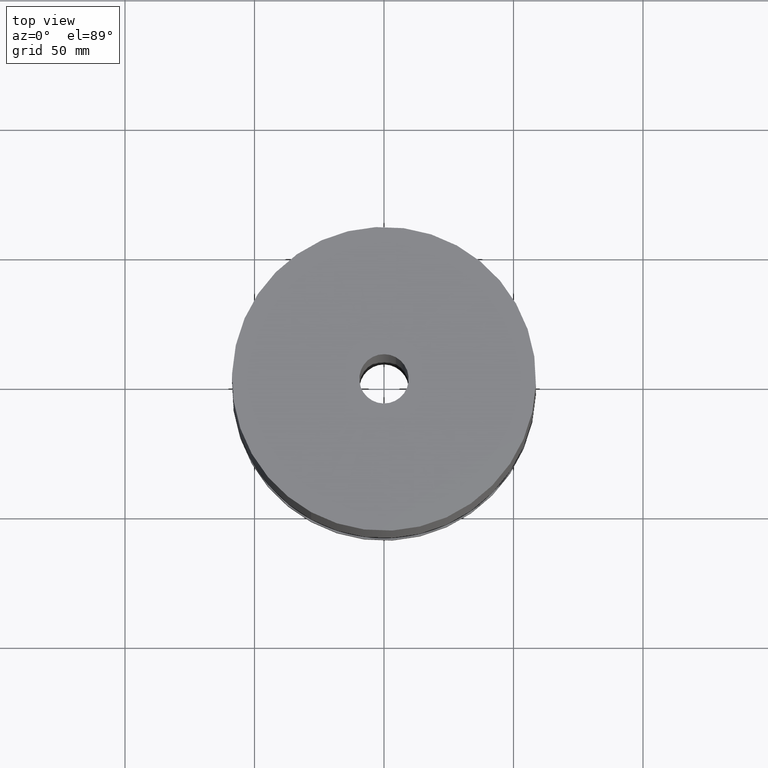
[diagram: clean part render]
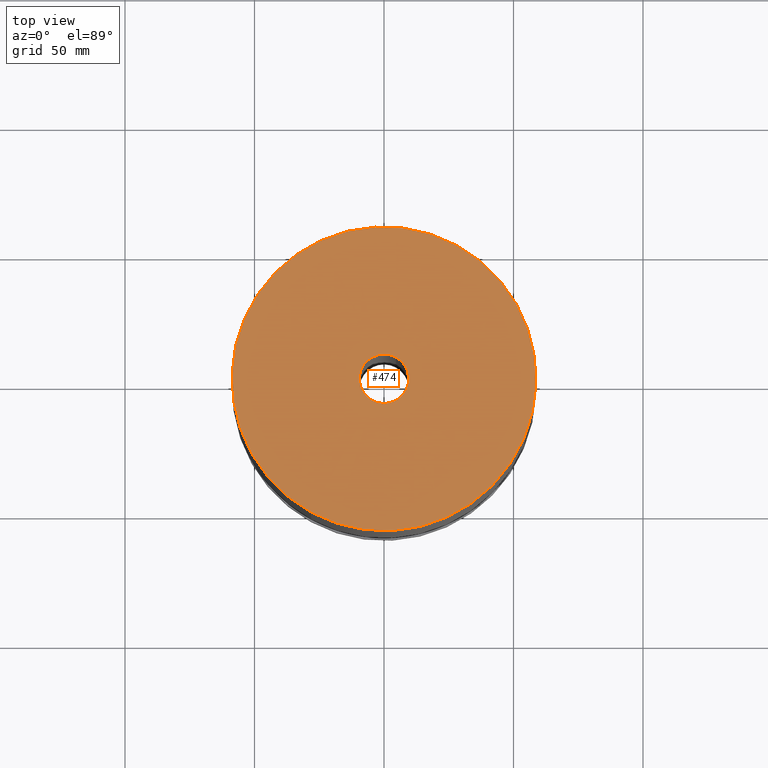
[diagram: same view with one face highlighted and labeled with its STEP entity id]
A machine part, top view. The second image highlights one B-rep face of the part: STEP entity #474.
In plain terms, the highlighted planar face has unit normal (0, 0, -1).
Its self-contained STEP definition (entity closure, byte-faithful):
#418=AXIS2_PLACEMENT_3D('Circle Axis2P3D',#416,#417,$) ;
#437=AXIS2_PLACEMENT_3D('Circle Axis2P3D',#435,#436,$) ;
#450=AXIS2_PLACEMENT_3D('Plane Axis2P3D',#447,#448,#449) ;
#458=AXIS2_PLACEMENT_3D('Circle Axis2P3D',#456,#457,$) ;
#467=AXIS2_PLACEMENT_3D('Circle Axis2P3D',#465,#466,$) ;
#413=CARTESIAN_POINT('Vertex',(1.10747299418,2.02721571797,8.75000000003)) ;
#416=CARTESIAN_POINT('Axis2P3D Location',(0.,0.,8.75000000003)) ;
#420=CARTESIAN_POINT('Vertex',(-1.10747299418,-2.02721571797,8.75000000003)) ;
#435=CARTESIAN_POINT('Axis2P3D Location',(0.,0.,8.75000000003)) ;
#447=CARTESIAN_POINT('Axis2P3D Location',(0.,2.31000000001,8.75000000003)) ;
#456=CARTESIAN_POINT('Axis2P3D Location',(0.,0.,8.75000000003)) ;
#460=CARTESIAN_POINT('Vertex',(-0.179784576977,-0.32909346071,8.75000000004)) ;
#462=CARTESIAN_POINT('Vertex',(0.179784576977,0.32909346071,8.75000000004)) ;
#465=CARTESIAN_POINT('Axis2P3D Location',(0.,0.,8.75000000003)) ;
#417=DIRECTION('Axis2P3D Direction',(0.,0.,-0.0393700787402)) ;
#436=DIRECTION('Axis2P3D Direction',(0.,0.,-0.0393700787402)) ;
#448=DIRECTION('Axis2P3D Direction',(0.,0.,-0.0393700787402)) ;
#449=DIRECTION('Axis2P3D XDirection',(0.0393700787402,0.,0.)) ;
#457=DIRECTION('Axis2P3D Direction',(0.,0.,-0.0393700787402)) ;
#466=DIRECTION('Axis2P3D Direction',(0.,0.,-0.0393700787402)) ;
#453=ORIENTED_EDGE('',*,*,#422,.F.) ;
#454=ORIENTED_EDGE('',*,*,#439,.F.) ;
#471=ORIENTED_EDGE('',*,*,#464,.T.) ;
#472=ORIENTED_EDGE('',*,*,#469,.T.) ;
#473=FACE_BOUND('',#470,.T.) ;
#474=ADVANCED_FACE('PartBody',(#455,#473),#451,.F.) ;
#419=CIRCLE('generated circle',#418,2.31000000001) ;
#438=CIRCLE('generated circle',#437,2.31000000001) ;
#459=CIRCLE('generated circle',#458,0.375000000001) ;
#468=CIRCLE('generated circle',#467,0.375000000001) ;
#422=EDGE_CURVE('',#414,#421,#419,.T.) ;
#439=EDGE_CURVE('',#421,#414,#438,.T.) ;
#464=EDGE_CURVE('',#461,#463,#459,.T.) ;
#469=EDGE_CURVE('',#463,#461,#468,.T.) ;
#452=EDGE_LOOP('',(#453,#454)) ;
#470=EDGE_LOOP('',(#471,#472)) ;
#455=FACE_OUTER_BOUND('',#452,.T.) ;
#451=PLANE('',#450) ;
#414=VERTEX_POINT('',#413) ;
#421=VERTEX_POINT('',#420) ;
#461=VERTEX_POINT('',#460) ;
#463=VERTEX_POINT('',#462) ;